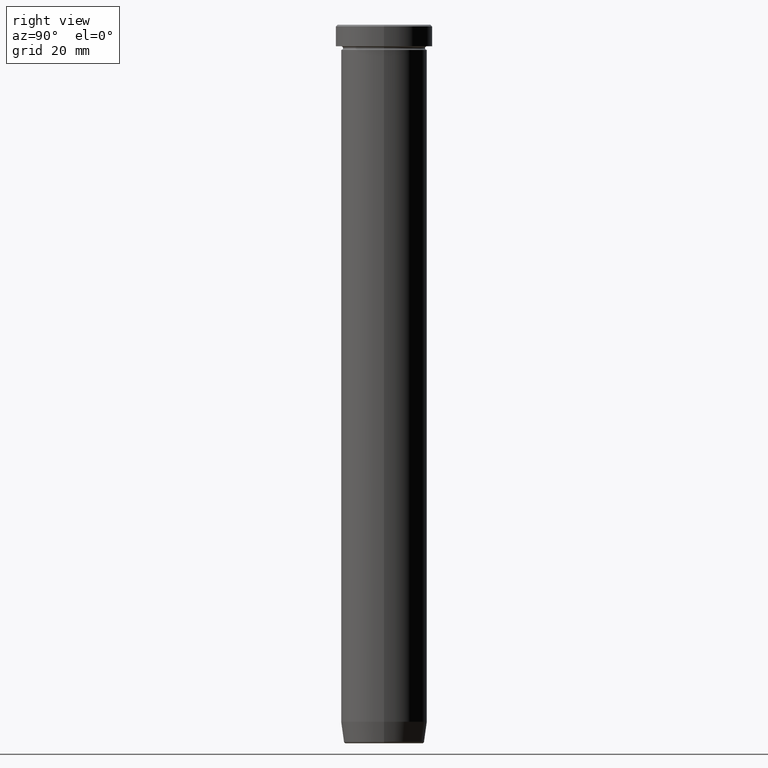
[diagram: clean part render]
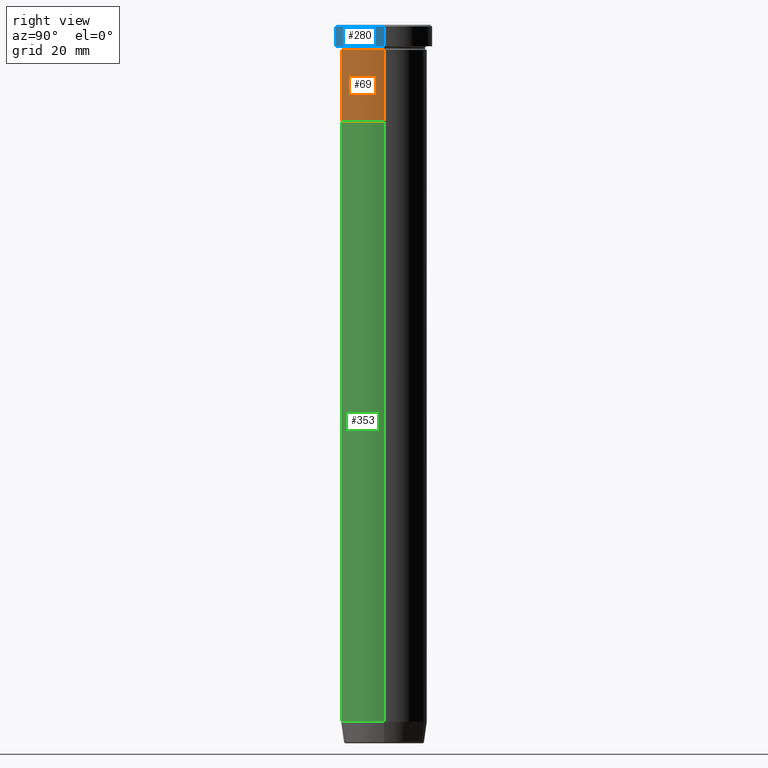
[diagram: same view with three faces highlighted in distinct colors, each labeled with its STEP entity id]
A machine part, right view with three faces highlighted in distinct colors.
Their STEP definitions:

[orange] entity #69 — the highlighted cylindrical surface (partial cylindrical patch) has radius 12 mm, axis along (-0, -0, 1).
#3 = VERTEX_POINT ( 'NONE', #170 ) ;
#17 = VERTEX_POINT ( 'NONE', #126 ) ;
#22 = DIRECTION ( 'NONE',  ( -0.000000000000000000, -0.000000000000000000, 1.000000000000000000 ) ) ;
#33 = CARTESIAN_POINT ( 'NONE',  ( 12.00000000000000000, 0.000000000000000000, 0.000000000000000000 ) ) ;
#35 = EDGE_CURVE ( 'NONE', #3, #17, #216, .T. ) ;
#39 = FACE_OUTER_BOUND ( 'NONE', #426, .T. ) ;
#40 = CIRCLE ( 'NONE', #386, 12.00000000000000000 ) ;
#69 = ADVANCED_FACE ( 'NONE', ( #39 ), #448, .T. ) ;
#78 = DIRECTION ( 'NONE',  ( -0.000000000000000000, -0.000000000000000000, 1.000000000000000000 ) ) ;
#112 = EDGE_CURVE ( 'NONE', #262, #153, #199, .T. ) ;
#117 = ORIENTED_EDGE ( 'NONE', *, *, #112, .T. ) ;
#121 = VECTOR ( 'NONE', #78, 1000.000000000000000 ) ;
#126 = CARTESIAN_POINT ( 'NONE',  ( -12.00000000000000000, 1.469576158976823947E-15, -7.000000000000000000 ) ) ;
#135 = ORIENTED_EDGE ( 'NONE', *, *, #35, .F. ) ;
#152 = ORIENTED_EDGE ( 'NONE', *, *, #499, .F. ) ;
#153 = VERTEX_POINT ( 'NONE', #450 ) ;
#160 = CARTESIAN_POINT ( 'NONE',  ( 0.000000000000000000, 0.000000000000000000, 0.000000000000000000 ) ) ;
#170 = CARTESIAN_POINT ( 'NONE',  ( -12.00000000000000000, 1.469576158976823947E-15, -27.00000000000000000 ) ) ;
#199 = LINE ( 'NONE', #33, #121 ) ;
#216 = LINE ( 'NONE', #403, #542 ) ;
#262 = VERTEX_POINT ( 'NONE', #368 ) ;
#312 = AXIS2_PLACEMENT_3D ( 'NONE', #393, #479, #573 ) ;
#328 = CIRCLE ( 'NONE', #312, 12.00000000000000000 ) ;
#368 = CARTESIAN_POINT ( 'NONE',  ( 12.00000000000000000, 0.000000000000000000, -27.00000000000000000 ) ) ;
#383 = ORIENTED_EDGE ( 'NONE', *, *, #559, .T. ) ;
#386 = AXIS2_PLACEMENT_3D ( 'NONE', #440, #22, #578 ) ;
#393 = CARTESIAN_POINT ( 'NONE',  ( 0.000000000000000000, 0.000000000000000000, -27.00000000000000000 ) ) ;
#403 = CARTESIAN_POINT ( 'NONE',  ( -12.00000000000000000, 1.469576158976823947E-15, 0.000000000000000000 ) ) ;
#426 = EDGE_LOOP ( 'NONE', ( #135, #383, #117, #152 ) ) ;
#440 = CARTESIAN_POINT ( 'NONE',  ( 0.000000000000000000, 0.000000000000000000, -7.000000000000000000 ) ) ;
#448 = CYLINDRICAL_SURFACE ( 'NONE', #455, 12.00000000000000000 ) ;
#450 = CARTESIAN_POINT ( 'NONE',  ( 12.00000000000000000, 0.000000000000000000, -7.000000000000000000 ) ) ;
#455 = AXIS2_PLACEMENT_3D ( 'NONE', #160, #585, #494 ) ;
#479 = DIRECTION ( 'NONE',  ( -0.000000000000000000, -0.000000000000000000, 1.000000000000000000 ) ) ;
#494 = DIRECTION ( 'NONE',  ( 1.000000000000000000, 0.000000000000000000, 0.000000000000000000 ) ) ;
#499 = EDGE_CURVE ( 'NONE', #17, #153, #40, .T. ) ;
#536 = DIRECTION ( 'NONE',  ( -0.000000000000000000, -0.000000000000000000, 1.000000000000000000 ) ) ;
#542 = VECTOR ( 'NONE', #536, 1000.000000000000000 ) ;
#559 = EDGE_CURVE ( 'NONE', #3, #262, #328, .T. ) ;
#573 = DIRECTION ( 'NONE',  ( 1.000000000000000000, 0.000000000000000000, 0.000000000000000000 ) ) ;
#578 = DIRECTION ( 'NONE',  ( 1.000000000000000000, 0.000000000000000000, 0.000000000000000000 ) ) ;
#585 = DIRECTION ( 'NONE',  ( -0.000000000000000000, -0.000000000000000000, 1.000000000000000000 ) ) ;

[blue] entity #280 — the highlighted cylindrical surface (partial cylindrical patch) has radius 13.5 mm, axis along (-0, -0, 1).
#25 = DIRECTION ( 'NONE',  ( -0.000000000000000000, -0.000000000000000000, 1.000000000000000000 ) ) ;
#44 = DIRECTION ( 'NONE',  ( -0.000000000000000000, -0.000000000000000000, 1.000000000000000000 ) ) ;
#62 = DIRECTION ( 'NONE',  ( 1.000000000000000000, 0.000000000000000000, 0.000000000000000000 ) ) ;
#63 = CIRCLE ( 'NONE', #211, 13.50000000000000000 ) ;
#64 = ORIENTED_EDGE ( 'NONE', *, *, #520, .T. ) ;
#74 = DIRECTION ( 'NONE',  ( -0.000000000000000000, -0.000000000000000000, 1.000000000000000000 ) ) ;
#82 = VERTEX_POINT ( 'NONE', #447 ) ;
#95 = CARTESIAN_POINT ( 'NONE',  ( -13.50000000000000000, 1.653273178848926867E-15, 0.000000000000000000 ) ) ;
#97 = CARTESIAN_POINT ( 'NONE',  ( -13.50000000000000000, 1.653273178848926867E-15, -5.999999999999999112 ) ) ;
#104 = VECTOR ( 'NONE', #25, 1000.000000000000000 ) ;
#108 = CARTESIAN_POINT ( 'NONE',  ( 13.50000000000000000, 0.000000000000000000, -5.999999999999999112 ) ) ;
#154 = EDGE_CURVE ( 'NONE', #516, #82, #63, .T. ) ;
#211 = AXIS2_PLACEMENT_3D ( 'NONE', #420, #410, #361 ) ;
#215 = FACE_OUTER_BOUND ( 'NONE', #572, .T. ) ;
#229 = EDGE_CURVE ( 'NONE', #340, #82, #323, .T. ) ;
#243 = ORIENTED_EDGE ( 'NONE', *, *, #530, .T. ) ;
#253 = AXIS2_PLACEMENT_3D ( 'NONE', #580, #74, #351 ) ;
#280 = ADVANCED_FACE ( 'NONE', ( #215 ), #391, .T. ) ;
#293 = ORIENTED_EDGE ( 'NONE', *, *, #229, .F. ) ;
#300 = DIRECTION ( 'NONE',  ( -0.000000000000000000, -0.000000000000000000, 1.000000000000000000 ) ) ;
#309 = LINE ( 'NONE', #442, #104 ) ;
#323 = LINE ( 'NONE', #95, #375 ) ;
#340 = VERTEX_POINT ( 'NONE', #97 ) ;
#348 = CARTESIAN_POINT ( 'NONE',  ( 13.50000000000000000, 0.000000000000000000, -0.5000000000000091038 ) ) ;
#351 = DIRECTION ( 'NONE',  ( 1.000000000000000000, 0.000000000000000000, 0.000000000000000000 ) ) ;
#361 = DIRECTION ( 'NONE',  ( 1.000000000000000000, 0.000000000000000000, 0.000000000000000000 ) ) ;
#375 = VECTOR ( 'NONE', #44, 1000.000000000000000 ) ;
#379 = VERTEX_POINT ( 'NONE', #108 ) ;
#391 = CYLINDRICAL_SURFACE ( 'NONE', #555, 13.50000000000000000 ) ;
#410 = DIRECTION ( 'NONE',  ( 0.000000000000000000, 0.000000000000000000, -1.000000000000000000 ) ) ;
#420 = CARTESIAN_POINT ( 'NONE',  ( 0.000000000000000000, 0.000000000000000000, -0.5000000000000091038 ) ) ;
#425 = ORIENTED_EDGE ( 'NONE', *, *, #154, .T. ) ;
#442 = CARTESIAN_POINT ( 'NONE',  ( 13.50000000000000000, 0.000000000000000000, 0.000000000000000000 ) ) ;
#447 = CARTESIAN_POINT ( 'NONE',  ( -13.50000000000000000, 1.653273178848926867E-15, -0.5000000000000091038 ) ) ;
#516 = VERTEX_POINT ( 'NONE', #348 ) ;
#520 = EDGE_CURVE ( 'NONE', #340, #379, #533, .T. ) ;
#530 = EDGE_CURVE ( 'NONE', #379, #516, #309, .T. ) ;
#533 = CIRCLE ( 'NONE', #253, 13.50000000000000000 ) ;
#555 = AXIS2_PLACEMENT_3D ( 'NONE', #571, #300, #62 ) ;
#571 = CARTESIAN_POINT ( 'NONE',  ( 0.000000000000000000, 0.000000000000000000, 0.000000000000000000 ) ) ;
#572 = EDGE_LOOP ( 'NONE', ( #293, #64, #243, #425 ) ) ;
#580 = CARTESIAN_POINT ( 'NONE',  ( 0.000000000000000000, 0.000000000000000000, -5.999999999999999112 ) ) ;

[green] entity #353 — the highlighted cylindrical surface (partial cylindrical patch) has radius 12 mm, axis along (-0, -0, 1).
#10 = CYLINDRICAL_SURFACE ( 'NONE', #102, 12.00000000000000000 ) ;
#21 = DIRECTION ( 'NONE',  ( -0.000000000000000000, -0.000000000000000000, 1.000000000000000000 ) ) ;
#28 = EDGE_CURVE ( 'NONE', #208, #164, #360, .T. ) ;
#37 = LINE ( 'NONE', #501, #413 ) ;
#102 = AXIS2_PLACEMENT_3D ( 'NONE', #204, #296, #421 ) ;
#106 = ORIENTED_EDGE ( 'NONE', *, *, #233, .F. ) ;
#128 = EDGE_LOOP ( 'NONE', ( #106, #175, #205, #279 ) ) ;
#142 = EDGE_CURVE ( 'NONE', #164, #301, #416, .T. ) ;
#151 = DIRECTION ( 'NONE',  ( -0.000000000000000000, -0.000000000000000000, 1.000000000000000000 ) ) ;
#164 = VERTEX_POINT ( 'NONE', #548 ) ;
#175 = ORIENTED_EDGE ( 'NONE', *, *, #28, .T. ) ;
#179 = VERTEX_POINT ( 'NONE', #358 ) ;
#204 = CARTESIAN_POINT ( 'NONE',  ( 0.000000000000000000, 0.000000000000000000, 0.000000000000000000 ) ) ;
#205 = ORIENTED_EDGE ( 'NONE', *, *, #142, .T. ) ;
#208 = VERTEX_POINT ( 'NONE', #331 ) ;
#233 = EDGE_CURVE ( 'NONE', #208, #179, #37, .T. ) ;
#236 = AXIS2_PLACEMENT_3D ( 'NONE', #256, #21, #398 ) ;
#256 = CARTESIAN_POINT ( 'NONE',  ( 0.000000000000000000, 0.000000000000000000, -193.9999999999999716 ) ) ;
#279 = ORIENTED_EDGE ( 'NONE', *, *, #377, .F. ) ;
#282 = CARTESIAN_POINT ( 'NONE',  ( 12.00000000000000000, 0.000000000000000000, 0.000000000000000000 ) ) ;
#287 = DIRECTION ( 'NONE',  ( -0.000000000000000000, -0.000000000000000000, 1.000000000000000000 ) ) ;
#296 = DIRECTION ( 'NONE',  ( -0.000000000000000000, -0.000000000000000000, 1.000000000000000000 ) ) ;
#301 = VERTEX_POINT ( 'NONE', #434 ) ;
#319 = DIRECTION ( 'NONE',  ( -0.000000000000000000, -0.000000000000000000, 1.000000000000000000 ) ) ;
#325 = VECTOR ( 'NONE', #287, 1000.000000000000000 ) ;
#331 = CARTESIAN_POINT ( 'NONE',  ( -12.00000000000000000, 1.469576158976823947E-15, -193.9999999999999716 ) ) ;
#353 = ADVANCED_FACE ( 'NONE', ( #569 ), #10, .T. ) ;
#358 = CARTESIAN_POINT ( 'NONE',  ( -12.00000000000000000, 1.469576158976823947E-15, -27.00000000000000000 ) ) ;
#360 = CIRCLE ( 'NONE', #236, 12.00000000000000000 ) ;
#362 = AXIS2_PLACEMENT_3D ( 'NONE', #517, #151, #558 ) ;
#377 = EDGE_CURVE ( 'NONE', #179, #301, #491, .T. ) ;
#398 = DIRECTION ( 'NONE',  ( 1.000000000000000000, 0.000000000000000000, 0.000000000000000000 ) ) ;
#413 = VECTOR ( 'NONE', #319, 1000.000000000000000 ) ;
#416 = LINE ( 'NONE', #282, #325 ) ;
#421 = DIRECTION ( 'NONE',  ( 1.000000000000000000, 0.000000000000000000, 0.000000000000000000 ) ) ;
#434 = CARTESIAN_POINT ( 'NONE',  ( 12.00000000000000000, 0.000000000000000000, -27.00000000000000000 ) ) ;
#491 = CIRCLE ( 'NONE', #362, 12.00000000000000000 ) ;
#501 = CARTESIAN_POINT ( 'NONE',  ( -12.00000000000000000, 1.469576158976823947E-15, 0.000000000000000000 ) ) ;
#517 = CARTESIAN_POINT ( 'NONE',  ( 0.000000000000000000, 0.000000000000000000, -27.00000000000000000 ) ) ;
#548 = CARTESIAN_POINT ( 'NONE',  ( 12.00000000000000000, 0.000000000000000000, -193.9999999999999716 ) ) ;
#558 = DIRECTION ( 'NONE',  ( 1.000000000000000000, 0.000000000000000000, 0.000000000000000000 ) ) ;
#569 = FACE_OUTER_BOUND ( 'NONE', #128, .T. ) ;